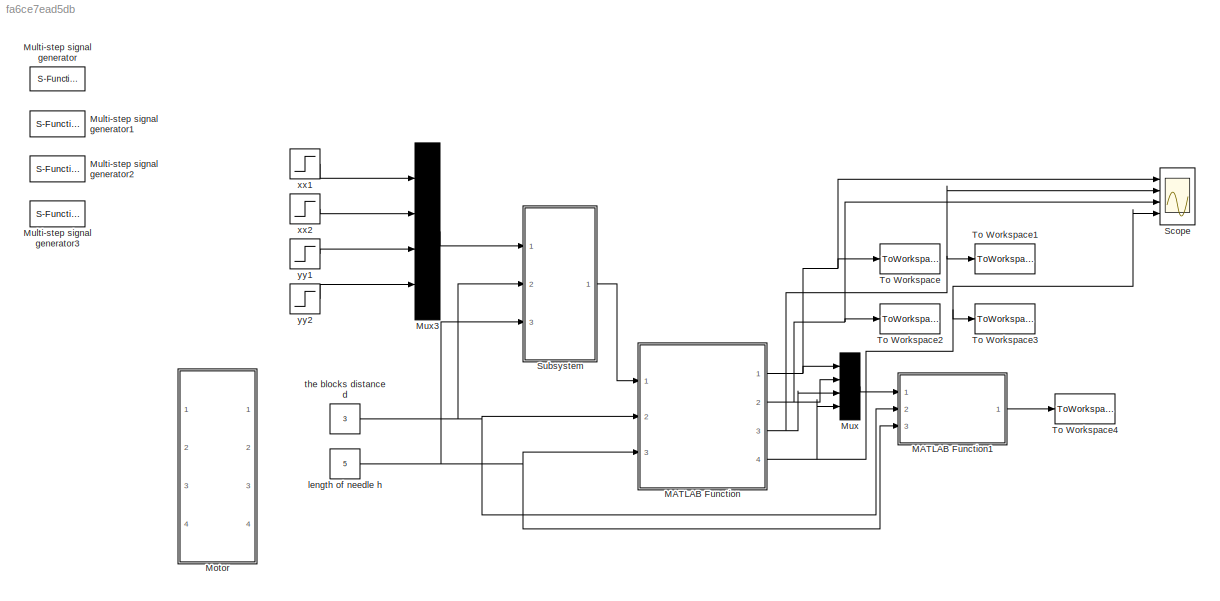
MODEL slx_fa6ce7ead5db
KIND model
CONFIG AbsTol = auto
CONFIG FixedStep = 0.01
CONFIG MaxStep = auto
CONFIG MinStep = auto
CONFIG RelTol = 1e-3
CONFIG SampleTimeConstraint = Unconstrained
CONFIG Solver = ode4
CONFIG SolverMode = Auto
CONFIG SolverName = ode4
CONFIG StartTime = 0.0
CONFIG StopTime = 10
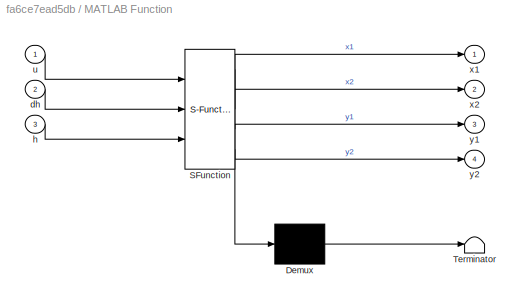
BLOCK [SubSystem] MATLAB Function
  ErrorFcn = Stateflow.Translate.translate
  PermitHierarchicalResolution = ExplicitOnly
  Ports = [3, 4]
  RequestExecContextInheritance = off
  SFBlockType = MATLAB Function
  TreatAsAtomicUnit = on
BLOCK [Demux] MATLAB Function/ Demux 
  Outputs = 1
  Ports = [1, 1]
BLOCK [S-Function] MATLAB Function/ SFunction 
  EnableBusSupport = on
  FunctionName = sf_sfun
  PortCounts = [3 5]
  Ports = [3, 5]
  Tag = Stateflow S-Function MPC_traj 2
BLOCK [Terminator] MATLAB Function/ Terminator 
BLOCK [Inport] MATLAB Function/dh
  IconDisplay = Port number
  Port = 2
BLOCK [Inport] MATLAB Function/h
  IconDisplay = Port number
  Port = 3
BLOCK [Inport] MATLAB Function/u
  IconDisplay = Port number
BLOCK [Outport] MATLAB Function/x1
  IconDisplay = Port number
BLOCK [Outport] MATLAB Function/x2
  IconDisplay = Port number
  Port = 2
BLOCK [Outport] MATLAB Function/y1
  IconDisplay = Port number
  Port = 3
BLOCK [Outport] MATLAB Function/y2
  IconDisplay = Port number
  Port = 4
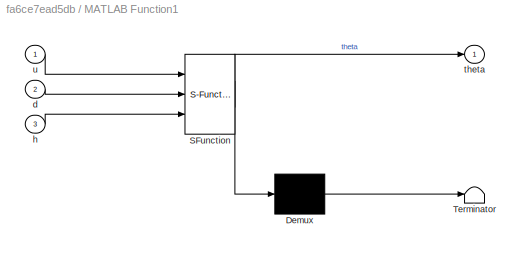
BLOCK [SubSystem] MATLAB Function1
  ErrorFcn = Stateflow.Translate.translate
  PermitHierarchicalResolution = ExplicitOnly
  Ports = [3, 1]
  RequestExecContextInheritance = off
  SFBlockType = MATLAB Function
  TreatAsAtomicUnit = on
BLOCK [Demux] MATLAB Function1/ Demux 
  Outputs = 1
  Ports = [1, 1]
BLOCK [S-Function] MATLAB Function1/ SFunction 
  EnableBusSupport = on
  FunctionName = sf_sfun
  PortCounts = [3 2]
  Ports = [3, 2]
  Tag = Stateflow S-Function MPC_traj 1
BLOCK [Terminator] MATLAB Function1/ Terminator 
BLOCK [Inport] MATLAB Function1/d
  IconDisplay = Port number
  Port = 2
BLOCK [Inport] MATLAB Function1/h
  IconDisplay = Port number
  Port = 3
BLOCK [Outport] MATLAB Function1/theta
  IconDisplay = Port number
BLOCK [Inport] MATLAB Function1/u
  IconDisplay = Port number
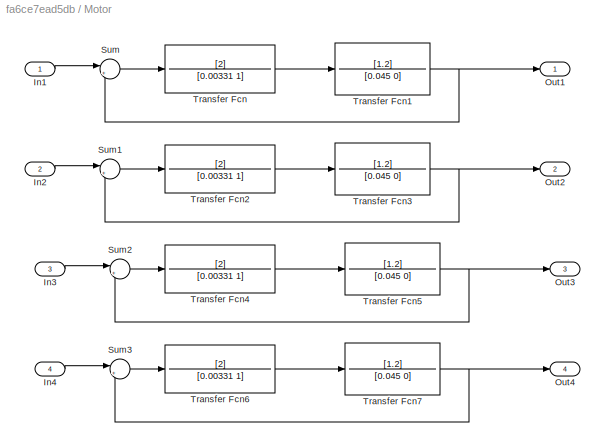
BLOCK [SubSystem] Motor 
  Ports = [4, 4]
  RequestExecContextInheritance = off
BLOCK [Inport] Motor /In1
  IconDisplay = Port number
BLOCK [Inport] Motor /In2
  IconDisplay = Port number
  Port = 2
BLOCK [Inport] Motor /In3
  IconDisplay = Port number
  Port = 3
BLOCK [Inport] Motor /In4
  IconDisplay = Port number
  Port = 4
BLOCK [Outport] Motor /Out1
  IconDisplay = Port number
BLOCK [Outport] Motor /Out2
  IconDisplay = Port number
  Port = 2
BLOCK [Outport] Motor /Out3
  IconDisplay = Port number
  Port = 3
BLOCK [Outport] Motor /Out4
  IconDisplay = Port number
  Port = 4
BLOCK [Sum] Motor /Sum
  IconShape = round
  InputSameDT = off
  Inputs = |+-
  OutDataTypeStr = Inherit: Inherit via internal rule
  Ports = [2, 1]
  SaturateOnIntegerOverflow = off
BLOCK [Sum] Motor /Sum1
  IconShape = round
  InputSameDT = off
  Inputs = |+-
  OutDataTypeStr = Inherit: Inherit via internal rule
  Ports = [2, 1]
  SaturateOnIntegerOverflow = off
BLOCK [Sum] Motor /Sum2
  IconShape = round
  InputSameDT = off
  Inputs = |+-
  OutDataTypeStr = Inherit: Inherit via internal rule
  Ports = [2, 1]
  SaturateOnIntegerOverflow = off
BLOCK [Sum] Motor /Sum3
  IconShape = round
  InputSameDT = off
  Inputs = |+-
  OutDataTypeStr = Inherit: Inherit via internal rule
  Ports = [2, 1]
  SaturateOnIntegerOverflow = off
BLOCK [TransferFcn] Motor /Transfer Fcn
  Denominator = [0.00331 1]
  Numerator = [2]
BLOCK [TransferFcn] Motor /Transfer Fcn1
  Denominator = [0.045 0]
  Numerator = [1.2]
BLOCK [TransferFcn] Motor /Transfer Fcn2
  Denominator = [0.00331 1]
  Numerator = [2]
BLOCK [TransferFcn] Motor /Transfer Fcn3
  Denominator = [0.045 0]
  Numerator = [1.2]
BLOCK [TransferFcn] Motor /Transfer Fcn4
  Denominator = [0.00331 1]
  Numerator = [2]
BLOCK [TransferFcn] Motor /Transfer Fcn5
  Denominator = [0.045 0]
  Numerator = [1.2]
BLOCK [TransferFcn] Motor /Transfer Fcn6
  Denominator = [0.00331 1]
  Numerator = [2]
BLOCK [TransferFcn] Motor /Transfer Fcn7
  Denominator = [0.045 0]
  Numerator = [1.2]
BLOCK [S-Function] Multi-step signal generator
  FunctionName = multi_step
  Parameters = tTime,yStep
  Ports = [0, 1]
BLOCK [S-Function] Multi-step signal generator1
  FunctionName = multi_step
  Parameters = tTime,yStep
  Ports = [0, 1]
BLOCK [S-Function] Multi-step signal generator2
  FunctionName = multi_step
  Parameters = tTime,yStep
  Ports = [0, 1]
BLOCK [S-Function] Multi-step signal generator3
  FunctionName = multi_step
  Parameters = tTime,yStep
  Ports = [0, 1]
BLOCK [Mux] Mux
  Ports = [4, 1]
BLOCK [Mux] Mux3
  Ports = [4, 1]
BLOCK [Scope] Scope
  Floating = off
  NumInputPorts = 4
  Ports = [4]
  TimeRange = 10
  YMax = 5~5~5~5
  YMin = -5~-5~-5~-5
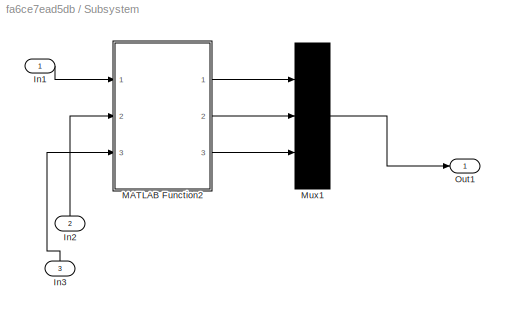
BLOCK [SubSystem] Subsystem
  Ports = [3, 1]
  RequestExecContextInheritance = off
BLOCK [Inport] Subsystem/In1
  IconDisplay = Port number
BLOCK [Inport] Subsystem/In2
  IconDisplay = Port number
  Port = 2
BLOCK [Inport] Subsystem/In3
  IconDisplay = Port number
  Port = 3
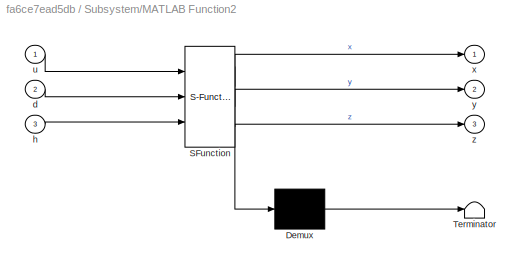
BLOCK [SubSystem] Subsystem/MATLAB Function2
  ErrorFcn = Stateflow.Translate.translate
  PermitHierarchicalResolution = ExplicitOnly
  Ports = [3, 3]
  RequestExecContextInheritance = off
  SFBlockType = MATLAB Function
  TreatAsAtomicUnit = on
BLOCK [Demux] Subsystem/MATLAB Function2/ Demux 
  Outputs = 1
  Ports = [1, 1]
BLOCK [S-Function] Subsystem/MATLAB Function2/ SFunction 
  EnableBusSupport = on
  FunctionName = sf_sfun
  PortCounts = [3 4]
  Ports = [3, 4]
  Tag = Stateflow S-Function MPC_traj 3
BLOCK [Terminator] Subsystem/MATLAB Function2/ Terminator 
BLOCK [Inport] Subsystem/MATLAB Function2/d
  IconDisplay = Port number
  Port = 2
BLOCK [Inport] Subsystem/MATLAB Function2/h
  IconDisplay = Port number
  Port = 3
BLOCK [Inport] Subsystem/MATLAB Function2/u
  IconDisplay = Port number
BLOCK [Outport] Subsystem/MATLAB Function2/x
  IconDisplay = Port number
BLOCK [Outport] Subsystem/MATLAB Function2/y
  IconDisplay = Port number
  Port = 2
BLOCK [Outport] Subsystem/MATLAB Function2/z
  IconDisplay = Port number
  Port = 3
BLOCK [Mux] Subsystem/Mux1
  Inputs = 3
  Ports = [3, 1]
BLOCK [Outport] Subsystem/Out1
  IconDisplay = Port number
BLOCK [ToWorkspace] To Workspace
  FixptAsFi = on
  MaxDataPoints = inf
  Ports = [1]
  SampleTime = -1
  Save2DSignal = 3-D array (concatenate along third dimension)
  SaveFormat = Timeseries
  VariableName = x1
BLOCK [ToWorkspace] To Workspace1
  FixptAsFi = on
  MaxDataPoints = inf
  Ports = [1]
  SampleTime = -1
  Save2DSignal = 3-D array (concatenate along third dimension)
  SaveFormat = Timeseries
  VariableName = y1
BLOCK [ToWorkspace] To Workspace2
  FixptAsFi = on
  MaxDataPoints = inf
  Ports = [1]
  SampleTime = -1
  Save2DSignal = 3-D array (concatenate along third dimension)
  SaveFormat = Timeseries
  VariableName = x2
BLOCK [ToWorkspace] To Workspace3
  FixptAsFi = on
  MaxDataPoints = inf
  Ports = [1]
  SampleTime = -1
  Save2DSignal = 3-D array (concatenate along third dimension)
  SaveFormat = Timeseries
  VariableName = y2
BLOCK [ToWorkspace] To Workspace4
  FixptAsFi = on
  MaxDataPoints = inf
  Ports = [1]
  SampleTime = -1
  Save2DSignal = 3-D array (concatenate along third dimension)
  SaveFormat = Timeseries
  VariableName = theta
BLOCK [Constant] length of needle h
  Value = 5
BLOCK [Constant] the blocks distance d
  Value = 3
BLOCK [Step] xx1
  After = -2
  Before = -2
  Time = 0
BLOCK [Step] xx2
  After = 0.5
  Before = 0.5
  Time = 0
BLOCK [Step] yy1
  After = -2
  Before = -2
  Time = 0
BLOCK [Step] yy2
  Before = 1
  Time = 5
LINE MATLAB Function1:1 -> To Workspace4:1
NET MATLAB Function:1 -> Mux:1, Scope:1, To Workspace:1
NET MATLAB Function:2 -> Mux:2, Scope:3, To Workspace2:1
NET MATLAB Function:3 -> Mux:3, Scope:2, To Workspace1:1
NET MATLAB Function:4 -> Mux:4, Scope:4, To Workspace3:1
LINE Motor /In1:1 -> Motor /Sum:1
LINE Motor /In2:1 -> Motor /Sum1:1
LINE Motor /In3:1 -> Motor /Sum2:1
LINE Motor /In4:1 -> Motor /Sum3:1
LINE Motor /Sum1:1 -> Motor /Transfer Fcn2:1
LINE Motor /Sum2:1 -> Motor /Transfer Fcn4:1
LINE Motor /Sum3:1 -> Motor /Transfer Fcn6:1
LINE Motor /Sum:1 -> Motor /Transfer Fcn:1
NET Motor /Transfer Fcn1:1 -> Motor /Out1:1, Motor /Sum:2
LINE Motor /Transfer Fcn2:1 -> Motor /Transfer Fcn3:1
NET Motor /Transfer Fcn3:1 -> Motor /Out2:1, Motor /Sum1:2
LINE Motor /Transfer Fcn4:1 -> Motor /Transfer Fcn5:1
NET Motor /Transfer Fcn5:1 -> Motor /Out3:1, Motor /Sum2:2
LINE Motor /Transfer Fcn6:1 -> Motor /Transfer Fcn7:1
NET Motor /Transfer Fcn7:1 -> Motor /Out4:1, Motor /Sum3:2
LINE Motor /Transfer Fcn:1 -> Motor /Transfer Fcn1:1
LINE Mux3:1 -> Subsystem:1
LINE Mux:1 -> MATLAB Function1:1
LINE Subsystem/In1:1 -> Subsystem/MATLAB Function2:1
LINE Subsystem/In2:1 -> Subsystem/MATLAB Function2:2
LINE Subsystem/In3:1 -> Subsystem/MATLAB Function2:3
LINE Subsystem/MATLAB Function2:1 -> Subsystem/Mux1:1
LINE Subsystem/MATLAB Function2:2 -> Subsystem/Mux1:2
LINE Subsystem/MATLAB Function2:3 -> Subsystem/Mux1:3
LINE Subsystem/Mux1:1 -> Subsystem/Out1:1
LINE Subsystem:1 -> MATLAB Function:1
NET length of needle h:1 -> MATLAB Function1:3, MATLAB Function:3, Subsystem:3
NET the blocks distance d:1 -> MATLAB Function1:2, MATLAB Function:2, Subsystem:2
LINE xx1:1 -> Mux3:1
LINE xx2:1 -> Mux3:2
LINE yy1:1 -> Mux3:3
LINE yy2:1 -> Mux3:4
note: NET lines group one-source signal fan-out (src -> all destinations, sorted); 1:1 wires keep LINE
CHART MATLAB Function1 states=1 transitions=1
  STATE_LABEL 'eML_blk_kernel()'
  STATE_LABEL 'SCRIPT:\nfunction theta  = get_theta(u,d,h)\n%#codegen\n\n% y = u;\n% mid = asin(u/5);\n% \n% mid2 = 3 * tan(mid);\n% \n% ymid = mid2 / 0.2;\n% \n% y = pi * ymid;\n\nx1 = u(1);x2 = u(2);y1 = u(3); y2 = u(4);\n\n% T01=[1,0,0,0;0,cos(atan2((x1+x2),d)),-sin(atan2((x1+x2),d)),0;0,sin(atan2((x1+x2),d)),cos(atan2((x1+x2),d)),x1;0,0,0,1];\n% T1m=[0,0,1,0;1,0,0,0,;0,1,0,0;0,0,0,1];\n% Tmm1=[0,1,0,0;-1,0,0,0;0,0,1,0;0,0,0,...<+319ch>'
CHART MATLAB Function states=1 transitions=1
  STATE_LABEL 'eML_blk_kernel()'
  STATE_LABEL 'SCRIPT:\nfunction [x1,x2,y1,y2] = inv(u,dh,h)\n%#codegen\n% u = 2.5\n% y = u;\nlimit = 2.774;\nX=u(1);Y=u(2);Z=u(3);\nforwardx = sign(X);forwardy=sign(Y);\n\nif (-limit<= X && X <= limit) && (-limit<= Y && Y <= limit)\n    X=abs(X);Y=abs(Y);\n    beta = atan2(Y,X);\n    H=sqrt(X^2+Y^2);\n    theta=asin(H/h);\n    D=dh*tan(theta);\n    y1 = -forwardy * D * sin(beta);\n    x1 = -forwardx * D * cos(beta);\n    x2 = 0...<+2652ch>'
CHART Subsystem/MATLAB Function2 states=1 transitions=1
  STATE_LABEL 'eML_blk_kernel()'
  STATE_LABEL 'SCRIPT:\nfunction [x,y,z] = forward(u,d,h)\n%#codegen\n\n% y = u;\n% mid = asin(u/5);\n% \n% mid2 = 3 * tan(mid);\n% \n% ymid = mid2 / 0.2;\n% \n% y = pi * ymid;\n\nx1 = u(1);x2 = u(2);y1 = u(3); y2 = u(4);\n\n% T01=[1,0,0,0;0,cos(atan2((x1+x2),d)),-sin(atan2((x1+x2),d)),0;0,sin(atan2((x1+x2),d)),cos(atan2((x1+x2),d)),x1;0,0,0,1];\n% T1m=[0,0,1,0;1,0,0,0,;0,1,0,0;0,0,0,1];\n% Tmm1=[0,1,0,0;-1,0,0,0;0,0,1,0;0,0,0,1...<+318ch>'
